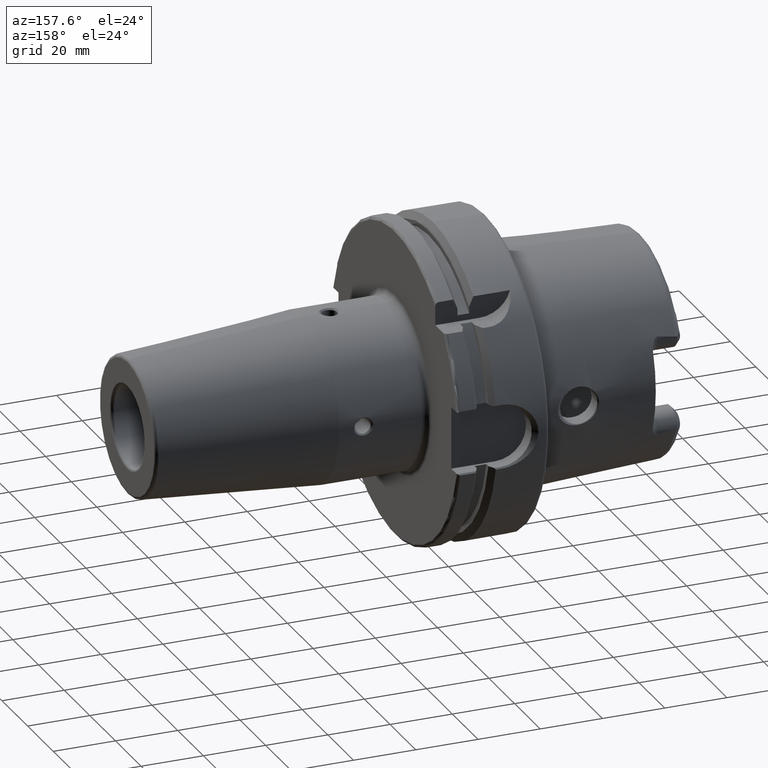
[diagram: clean part render]
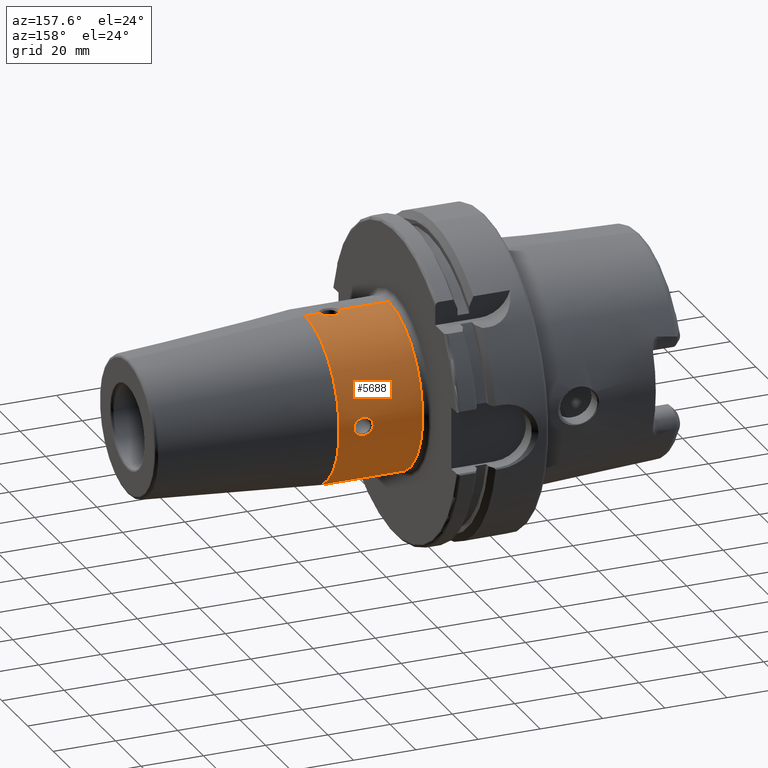
[diagram: same view with one face highlighted and labeled with its STEP entity id]
A machine part, auxiliary view. The second image highlights one B-rep face of the part: STEP entity #5688.
In plain terms, the highlighted cylindrical surface (partial cylindrical patch) has radius 26.5 mm, axis along (1, 0, 0).
Its self-contained STEP definition (entity closure, byte-faithful):
#2062=CARTESIAN_POINT('',(3.1E1,0.E0,0.E0));
#2063=DIRECTION('',(1.E0,0.E0,0.E0));
#2064=DIRECTION('',(0.E0,0.E0,-1.E0));
#2065=AXIS2_PLACEMENT_3D('',#2062,#2063,#2064);
#2130=DIRECTION('',(-1.E0,0.E0,0.E0));
#2131=VECTOR('',#2130,1.59E1);
#2132=CARTESIAN_POINT('',(4.69E1,0.E0,-2.65E1));
#2133=LINE('',#2132,#2131);
#2134=DIRECTION('',(-1.E0,0.E0,0.E0));
#2135=VECTOR('',#2134,1.59E1);
#2136=CARTESIAN_POINT('',(4.69E1,0.E0,2.65E1));
#2137=LINE('',#2136,#2135);
#2154=DIRECTION('',(-1.E0,0.E0,0.E0));
#2155=VECTOR('',#2154,4.722078687213E0);
#2156=CARTESIAN_POINT('',(5.782207868721E1,0.E0,2.65E1));
#2157=LINE('',#2156,#2155);
#2163=DIRECTION('',(-1.E0,0.E0,0.E0));
#2164=VECTOR('',#2163,4.722078687213E0);
#2165=CARTESIAN_POINT('',(5.782207868721E1,0.E0,-2.65E1));
#2166=LINE('',#2165,#2164);
#2255=CARTESIAN_POINT('',(4.69E1,2.65E1,2.027141713880E-14));
#2256=CARTESIAN_POINT('',(4.69E1,2.65E1,-2.436854310776E-1));
#2257=CARTESIAN_POINT('',(4.696131693178E1,2.649347591336E1,
-7.172376451996E-1));
#2258=CARTESIAN_POINT('',(4.724683920900E1,2.646490251583E1,-1.415870784335E0));
#2259=CARTESIAN_POINT('',(4.770106172933E1,2.642527241101E1,-2.011710790700E0));
#2260=CARTESIAN_POINT('',(4.826747596423E1,2.638586617733E1,-2.466586863175E0));
#2261=CARTESIAN_POINT('',(4.891140646832E1,2.635439675046E1,-2.777496380364E0));
#2262=CARTESIAN_POINT('',(4.963612257503E1,2.633553847324E1,-2.947934239291E0));
#2263=CARTESIAN_POINT('',(5.047443435307E1,2.633625509928E1,-2.941686372551E0));
#2264=CARTESIAN_POINT('',(5.134253651991E1,2.636360330580E1,-2.693444868870E0));
#2265=CARTESIAN_POINT('',(5.210106047746E1,2.640948284067E1,-2.212879074078E0));
#2266=CARTESIAN_POINT('',(5.267021092194E1,2.645689729291E1,-1.567069201768E0));
#2267=CARTESIAN_POINT('',(5.302332629629E1,2.649180833176E1,
-8.001449288352E-1));
#2268=CARTESIAN_POINT('',(5.31E1,2.65E1,-2.728867302596E-1));
#2269=CARTESIAN_POINT('',(5.31E1,2.65E1,0.E0));
#2271=CARTESIAN_POINT('',(5.31E1,2.65E1,0.E0));
#2272=CARTESIAN_POINT('',(5.31E1,2.65E1,2.436854310776E-1));
#2273=CARTESIAN_POINT('',(5.303868306822E1,2.649347591336E1,7.172376451996E-1));
#2274=CARTESIAN_POINT('',(5.275316079100E1,2.646490251583E1,1.415870784335E0));
#2275=CARTESIAN_POINT('',(5.229893827067E1,2.642527241101E1,2.011710790700E0));
#2276=CARTESIAN_POINT('',(5.173252403577E1,2.638586617733E1,2.466586863175E0));
#2277=CARTESIAN_POINT('',(5.108859353168E1,2.635439675046E1,2.777496380364E0));
#2278=CARTESIAN_POINT('',(5.036387742497E1,2.633553847324E1,2.947934239291E0));
#2279=CARTESIAN_POINT('',(4.952556564693E1,2.633625509928E1,2.941686372551E0));
#2280=CARTESIAN_POINT('',(4.865746348009E1,2.636360330580E1,2.693444868870E0));
#2281=CARTESIAN_POINT('',(4.789893952254E1,2.640948284067E1,2.212879074078E0));
#2282=CARTESIAN_POINT('',(4.732978907806E1,2.645689729291E1,1.567069201768E0));
#2283=CARTESIAN_POINT('',(4.697667370371E1,2.649180833176E1,8.001449288352E-1));
#2284=CARTESIAN_POINT('',(4.69E1,2.65E1,2.728867302596E-1));
#2285=CARTESIAN_POINT('',(4.69E1,2.65E1,2.027141713880E-14));
#2287=CARTESIAN_POINT('',(5.31E1,0.E0,-2.65E1));
#2288=CARTESIAN_POINT('',(5.31E1,2.730078773153E-1,-2.65E1));
#2289=CARTESIAN_POINT('',(5.302370924472E1,8.005384292665E-1,
-2.649184445834E1));
#2290=CARTESIAN_POINT('',(5.266652983240E1,1.573359592767E0,-2.645653472750E1));
#2291=CARTESIAN_POINT('',(5.209767399565E1,2.214333518027E0,-2.640931535189E1));
#2292=CARTESIAN_POINT('',(5.134680585873E1,2.692341822764E0,-2.636372479593E1));
#2293=CARTESIAN_POINT('',(5.046285577760E1,2.943696834954E0,-2.633603200113E1));
#2294=CARTESIAN_POINT('',(4.963497672226E1,2.947365915648E0,-2.633560755513E1));
#2295=CARTESIAN_POINT('',(4.890567767772E1,2.775419120011E0,-2.635460279884E1));
#2296=CARTESIAN_POINT('',(4.826820636206E1,2.467258281206E0,-2.638583015531E1));
#2297=CARTESIAN_POINT('',(4.769489586594E1,2.005424120814E0,-2.642573596937E1));
#2298=CARTESIAN_POINT('',(4.724544096339E1,1.414225914507E0,-2.646504739617E1));
#2299=CARTESIAN_POINT('',(4.695666404181E1,7.013837448016E-1,
-2.649394826360E1));
#2300=CARTESIAN_POINT('',(4.69E1,2.370296849158E-1,-2.65E1));
#2301=CARTESIAN_POINT('',(4.69E1,0.E0,-2.65E1));
#2303=CARTESIAN_POINT('',(5.782207868721E1,0.E0,0.E0));
#2304=DIRECTION('',(1.E0,0.E0,0.E0));
#2305=DIRECTION('',(0.E0,0.E0,-1.E0));
#2306=AXIS2_PLACEMENT_3D('',#2303,#2304,#2305);
#2308=CARTESIAN_POINT('',(4.69E1,0.E0,2.65E1));
#2309=CARTESIAN_POINT('',(4.69E1,2.361344716205E-1,2.65E1));
#2310=CARTESIAN_POINT('',(4.695605621259E1,6.993082045312E-1,2.649401079036E1));
#2311=CARTESIAN_POINT('',(4.724534830837E1,1.414326766061E0,2.646505441766E1));
#2312=CARTESIAN_POINT('',(4.769487727850E1,2.005347368717E0,2.642573746938E1));
#2313=CARTESIAN_POINT('',(4.826809248778E1,2.467174221253E0,2.638583892106E1));
#2314=CARTESIAN_POINT('',(4.890526862487E1,2.775272867291E0,2.635461798240E1));
#2315=CARTESIAN_POINT('',(4.963477674783E1,2.947347577808E0,2.633560984736E1));
#2316=CARTESIAN_POINT('',(5.046250457881E1,2.943748709535E0,2.633602623145E1));
#2317=CARTESIAN_POINT('',(5.134666145722E1,2.692408579422E0,2.636371738324E1));
#2318=CARTESIAN_POINT('',(5.209743423528E1,2.214538707884E0,2.640929800665E1));
#2319=CARTESIAN_POINT('',(5.266656107717E1,1.573381782654E0,2.645653617903E1));
#2320=CARTESIAN_POINT('',(5.302377920717E1,8.003126266831E-1,2.649185200105E1));
#2321=CARTESIAN_POINT('',(5.31E1,2.729031735191E-1,2.65E1));
#2322=CARTESIAN_POINT('',(5.31E1,0.E0,2.65E1));
#3179=CARTESIAN_POINT('',(5.782207868721E1,0.E0,-2.65E1));
#3180=VERTEX_POINT('',#3179);
#3207=CARTESIAN_POINT('',(5.782207868721E1,0.E0,2.65E1));
#3208=VERTEX_POINT('',#3207);
#3209=CARTESIAN_POINT('',(3.1E1,0.E0,-2.65E1));
#3210=CARTESIAN_POINT('',(3.1E1,0.E0,2.65E1));
#3211=VERTEX_POINT('',#3209);
#3212=VERTEX_POINT('',#3210);
#3235=VERTEX_POINT('',#2255);
#3236=VERTEX_POINT('',#2269);
#3247=VERTEX_POINT('',#2308);
#3248=VERTEX_POINT('',#2322);
#3273=CARTESIAN_POINT('',(4.69E1,0.E0,-2.65E1));
#3274=VERTEX_POINT('',#3273);
#3275=CARTESIAN_POINT('',(5.31E1,0.E0,-2.65E1));
#3276=VERTEX_POINT('',#3275);
#5665=CARTESIAN_POINT('',(2.47E1,0.E0,0.E0));
#5666=DIRECTION('',(1.E0,0.E0,0.E0));
#5667=DIRECTION('',(0.E0,0.E0,1.E0));
#5668=AXIS2_PLACEMENT_3D('',#5665,#5666,#5667);
#5669=CYLINDRICAL_SURFACE('',#5668,2.65E1);
#5670=ORIENTED_EDGE('',*,*,#5608,.F.);
#5671=ORIENTED_EDGE('',*,*,#5493,.F.);
#5673=ORIENTED_EDGE('',*,*,#5672,.T.);
#5674=ORIENTED_EDGE('',*,*,#5489,.T.);
#5676=ORIENTED_EDGE('',*,*,#5675,.F.);
#5677=ORIENTED_EDGE('',*,*,#5485,.T.);
#5678=ORIENTED_EDGE('',*,*,#5455,.F.);
#5679=ORIENTED_EDGE('',*,*,#5482,.F.);
#5680=EDGE_LOOP('',(#5670,#5671,#5673,#5674,#5676,#5677,#5678,#5679));
#5681=FACE_OUTER_BOUND('',#5680,.F.);
#5683=ORIENTED_EDGE('',*,*,#5682,.F.);
#5685=ORIENTED_EDGE('',*,*,#5684,.F.);
#5686=EDGE_LOOP('',(#5683,#5685));
#5687=FACE_BOUND('',#5686,.F.);
#5688=ADVANCED_FACE('',(#5681,#5687),#5669,.T.);
#2066=CIRCLE('',#2065,2.65E1);
#2270=B_SPLINE_CURVE_WITH_KNOTS('',3,(#2255,#2256,#2257,#2258,#2259,#2260,#2261,
#2262,#2263,#2264,#2265,#2266,#2267,#2268,#2269),.UNSPECIFIED.,.F.,.F.,(4,1,1,1,
1,1,1,1,1,1,1,1,4),(0.E0,8.333333333333E-2,1.666666666667E-1,2.5E-1,
3.333333333333E-1,4.166666666667E-1,5.E-1,5.833333333333E-1,6.666666666667E-1,
7.5E-1,8.333333333333E-1,9.166666666667E-1,1.E0),.UNSPECIFIED.);
#2286=B_SPLINE_CURVE_WITH_KNOTS('',3,(#2271,#2272,#2273,#2274,#2275,#2276,#2277,
#2278,#2279,#2280,#2281,#2282,#2283,#2284,#2285),.UNSPECIFIED.,.F.,.F.,(4,1,1,1,
1,1,1,1,1,1,1,1,4),(0.E0,8.333333333333E-2,1.666666666667E-1,2.5E-1,
3.333333333333E-1,4.166666666667E-1,5.E-1,5.833333333333E-1,6.666666666667E-1,
7.5E-1,8.333333333333E-1,9.166666666667E-1,1.E0),.UNSPECIFIED.);
#2302=B_SPLINE_CURVE_WITH_KNOTS('',3,(#2287,#2288,#2289,#2290,#2291,#2292,#2293,
#2294,#2295,#2296,#2297,#2298,#2299,#2300,#2301),.UNSPECIFIED.,.F.,.F.,(4,1,1,1,
1,1,1,1,1,1,1,1,4),(0.E0,8.333333333333E-2,1.666666666667E-1,2.5E-1,
3.333333333333E-1,4.166666666667E-1,5.E-1,5.833333333333E-1,6.666666666667E-1,
7.5E-1,8.333333333333E-1,9.166666666667E-1,1.E0),.UNSPECIFIED.);
#2307=CIRCLE('',#2306,2.65E1);
#2323=B_SPLINE_CURVE_WITH_KNOTS('',3,(#2308,#2309,#2310,#2311,#2312,#2313,#2314,
#2315,#2316,#2317,#2318,#2319,#2320,#2321,#2322),.UNSPECIFIED.,.F.,.F.,(4,1,1,1,
1,1,1,1,1,1,1,1,4),(0.E0,8.333333333333E-2,1.666666666667E-1,2.5E-1,
3.333333333333E-1,4.166666666667E-1,5.E-1,5.833333333333E-1,6.666666666667E-1,
7.5E-1,8.333333333333E-1,9.166666666667E-1,1.E0),.UNSPECIFIED.);
#5455=EDGE_CURVE('',#3211,#3212,#2066,.T.);
#5482=EDGE_CURVE('',#3274,#3211,#2133,.T.);
#5485=EDGE_CURVE('',#3247,#3212,#2137,.T.);
#5489=EDGE_CURVE('',#3208,#3248,#2157,.T.);
#5493=EDGE_CURVE('',#3180,#3276,#2166,.T.);
#5608=EDGE_CURVE('',#3276,#3274,#2302,.T.);
#5672=EDGE_CURVE('',#3180,#3208,#2307,.T.);
#5675=EDGE_CURVE('',#3247,#3248,#2323,.T.);
#5682=EDGE_CURVE('',#3235,#3236,#2270,.T.);
#5684=EDGE_CURVE('',#3236,#3235,#2286,.T.);